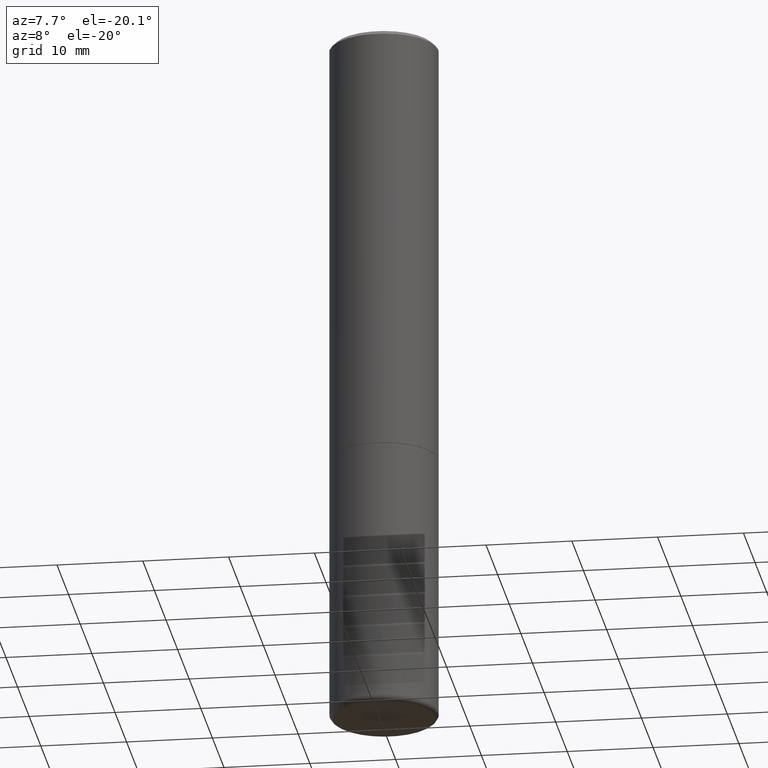
[diagram: clean part render]
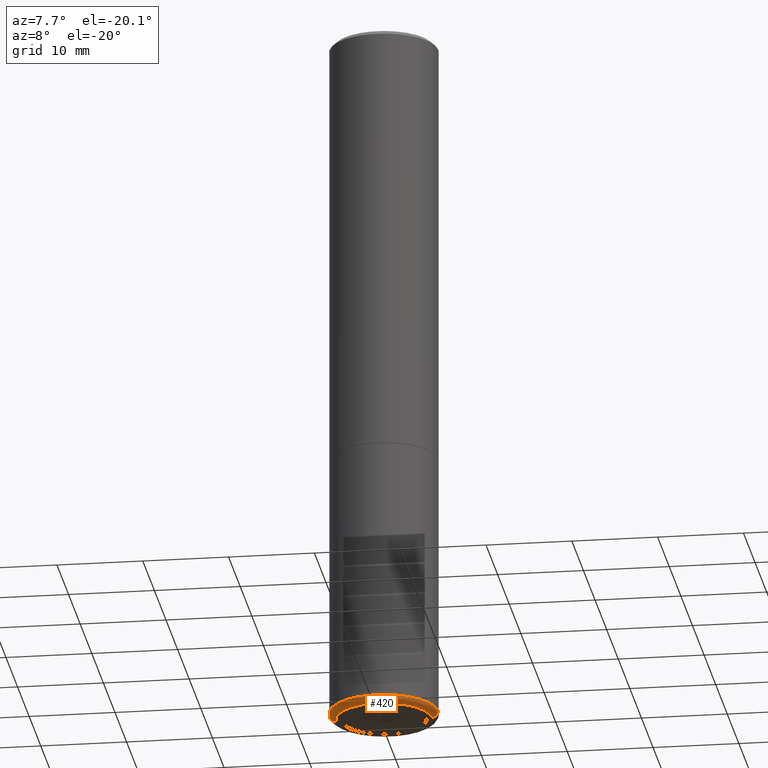
[diagram: same view with one face highlighted and labeled with its STEP entity id]
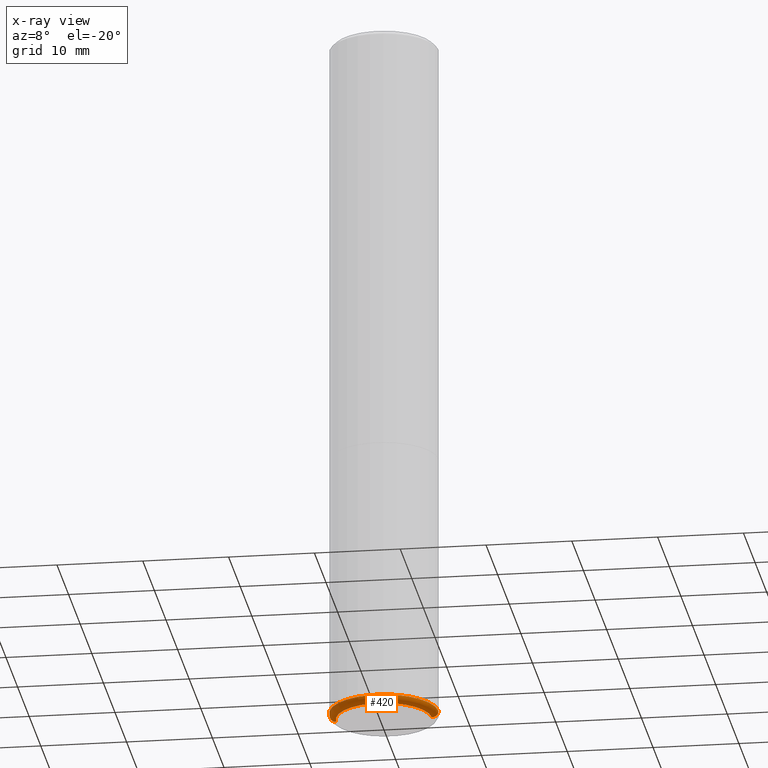
[diagram: x-ray of the same camera — body ghosted, the highlighted face saturated]
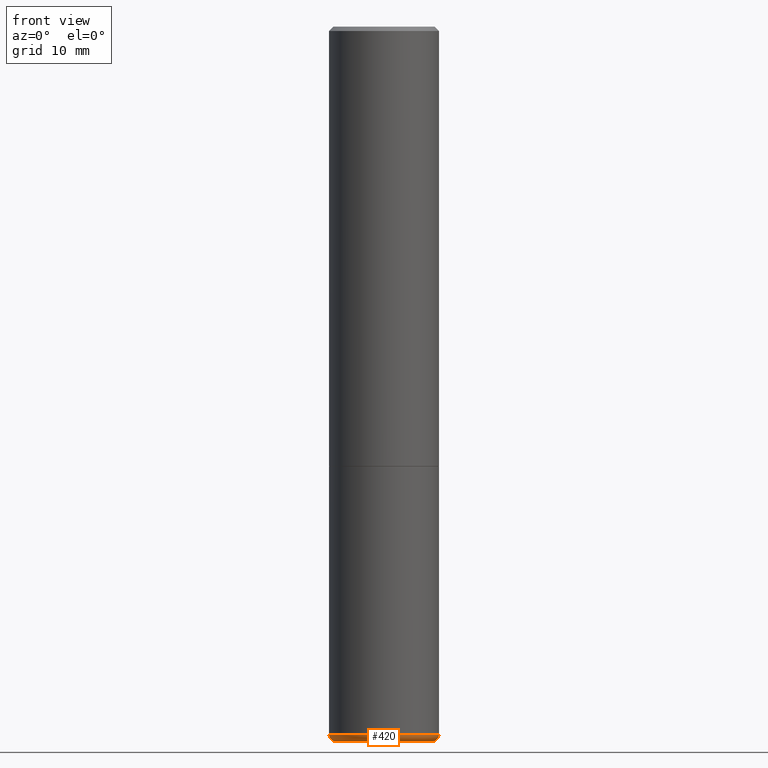
[diagram: same view with one face highlighted and labeled with its STEP entity id]
A machine part, auxiliary view. The second image highlights one B-rep face of the part: STEP entity #420.
The next image is the same camera in x-ray: the body ghosted, the highlighted face saturated — about 0% of this face is hidden behind the body in this view.
A second angle (front view) of the same face is appended — the face is thin or edge-on in the first view.
In plain terms, the highlighted toroidal blend (fillet) surface has major radius 5.588 mm and minor (blend) radius 0.762 mm.
Its self-contained STEP definition (entity closure, byte-faithful):
#2 = DIRECTION ( 'NONE',  ( 1.000000000000000000, -6.982962677686262766E-15, 4.883557194083111780E-29 ) ) ;
#20 = DIRECTION ( 'NONE',  ( -2.445468806185136597E-29, 3.491481338843145583E-15, 1.000000000000000000 ) ) ;
#40 = VERTEX_POINT ( 'NONE', #54 ) ;
#54 = CARTESIAN_POINT ( 'NONE',  ( 0.2499999999999994449, -1.298831456884381922E-14, -3.220001142308074549 ) ) ;
#63 = AXIS2_PLACEMENT_3D ( 'NONE', #263, #258, #442 ) ;
#90 = DIRECTION ( 'NONE',  ( 1.000000000000000000, -6.982962677686270655E-15, 0.000000000000000000 ) ) ;
#91 = EDGE_LOOP ( 'NONE', ( #356, #216, #365, #344 ) ) ;
#103 = CIRCLE ( 'NONE', #202, 0.2499999999999994449 ) ;
#132 = AXIS2_PLACEMENT_3D ( 'NONE', #256, #150, #2 ) ;
#133 = DIRECTION ( 'NONE',  ( -6.982962677686266711E-15, -1.000000000000000000, 3.491481338843145583E-15 ) ) ;
#142 = DIRECTION ( 'NONE',  ( 1.000000000000000000, -6.982962677686244622E-15, 0.000000000000000000 ) ) ;
#143 = AXIS2_PLACEMENT_3D ( 'NONE', #292, #184, #146 ) ;
#146 = DIRECTION ( 'NONE',  ( 1.000000000000000000, -6.982962677686265922E-15, 0.000000000000000000 ) ) ;
#150 = DIRECTION ( 'NONE',  ( -2.445468806185136597E-29, 3.491481338843145583E-15, 1.000000000000000000 ) ) ;
#151 = FACE_OUTER_BOUND ( 'NONE', #91, .T. ) ;
#152 = VERTEX_POINT ( 'NONE', #465 ) ;
#153 = EDGE_CURVE ( 'NONE', #337, #40, #103, .T. ) ;
#163 = CARTESIAN_POINT ( 'NONE',  ( 7.874412349394904045E-29, -1.124257389942225570E-14, -3.220001142308074549 ) ) ;
#184 = DIRECTION ( 'NONE',  ( -2.445468806185136597E-29, 3.491481338843145583E-15, 1.000000000000000000 ) ) ;
#202 = AXIS2_PLACEMENT_3D ( 'NONE', #163, #20, #90 ) ;
#216 = ORIENTED_EDGE ( 'NONE', *, *, #332, .T. ) ;
#235 = CARTESIAN_POINT ( 'NONE',  ( -0.2499999999999994449, -7.336411449154026516E-15, -3.220001142308074549 ) ) ;
#256 = CARTESIAN_POINT ( 'NONE',  ( 7.874412349394905166E-29, -1.124257389942225570E-14, -3.220001142308074993 ) ) ;
#258 = DIRECTION ( 'NONE',  ( 7.105427357601001859E-15, 1.000000000000000000, -3.491481338843145583E-15 ) ) ;
#262 = CIRCLE ( 'NONE', #143, 0.2197382039350491145 ) ;
#263 = CARTESIAN_POINT ( 'NONE',  ( -0.2200000000000001676, -9.679379880750033900E-15, -3.220001142308074993 ) ) ;
#292 = CARTESIAN_POINT ( 'NONE',  ( 7.947773620101693940E-29, -1.134731435124022443E-14, -3.250000000000000000 ) ) ;
#302 = CIRCLE ( 'NONE', #477, 0.02999999999999954439 ) ;
#308 = CARTESIAN_POINT ( 'NONE',  ( 0.2197382039350491145, -1.288173802818048494E-14, -3.250000000000000000 ) ) ;
#312 = EDGE_CURVE ( 'NONE', #449, #40, #302, .T. ) ;
#332 = EDGE_CURVE ( 'NONE', #152, #449, #262, .T. ) ;
#337 = VERTEX_POINT ( 'NONE', #235 ) ;
#344 = ORIENTED_EDGE ( 'NONE', *, *, #153, .F. ) ;
#353 = TOROIDAL_SURFACE ( 'NONE', #132, 0.2200000000000001676, 0.02999999999999953398 ) ;
#356 = ORIENTED_EDGE ( 'NONE', *, *, #432, .F. ) ;
#365 = ORIENTED_EDGE ( 'NONE', *, *, #312, .T. ) ;
#409 = CIRCLE ( 'NONE', #63, 0.02999999999999954439 ) ;
#420 = ADVANCED_FACE ( 'NONE', ( #151 ), #353, .T. ) ;
#432 = EDGE_CURVE ( 'NONE', #152, #337, #409, .T. ) ;
#442 = DIRECTION ( 'NONE',  ( -1.000000000000000000, 7.105427357600968727E-15, 0.000000000000000000 ) ) ;
#449 = VERTEX_POINT ( 'NONE', #308 ) ;
#465 = CARTESIAN_POINT ( 'NONE',  ( -0.2197382039350491145, -9.626098782756011188E-15, -3.250000000000000000 ) ) ;
#477 = AXIS2_PLACEMENT_3D ( 'NONE', #478, #133, #142 ) ;
#478 = CARTESIAN_POINT ( 'NONE',  ( 0.2200000000000001676, -1.277882568851323406E-14, -3.220001142308074993 ) ) ;